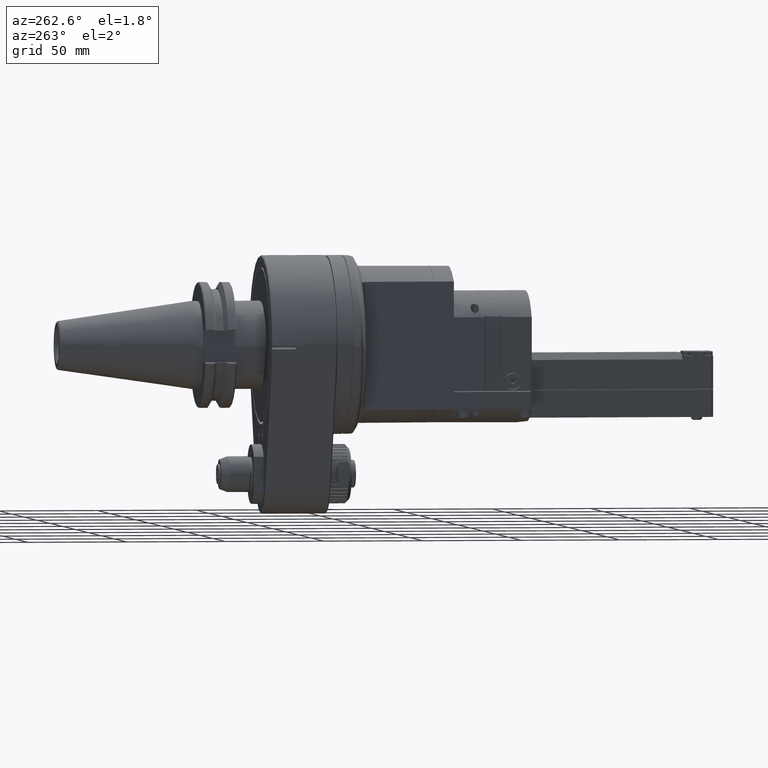
[diagram: clean part render]
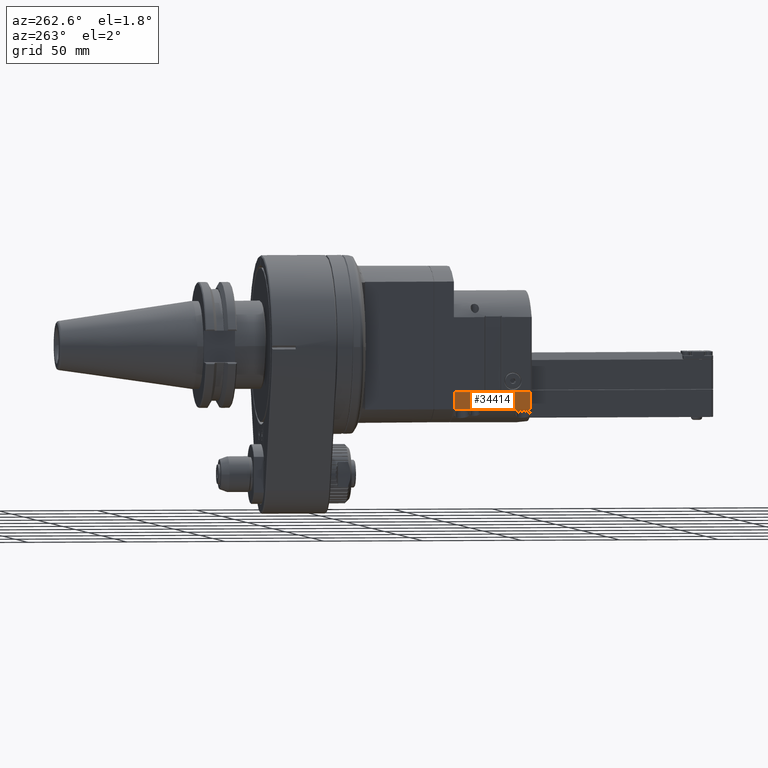
[diagram: same view with one face highlighted and labeled with its STEP entity id]
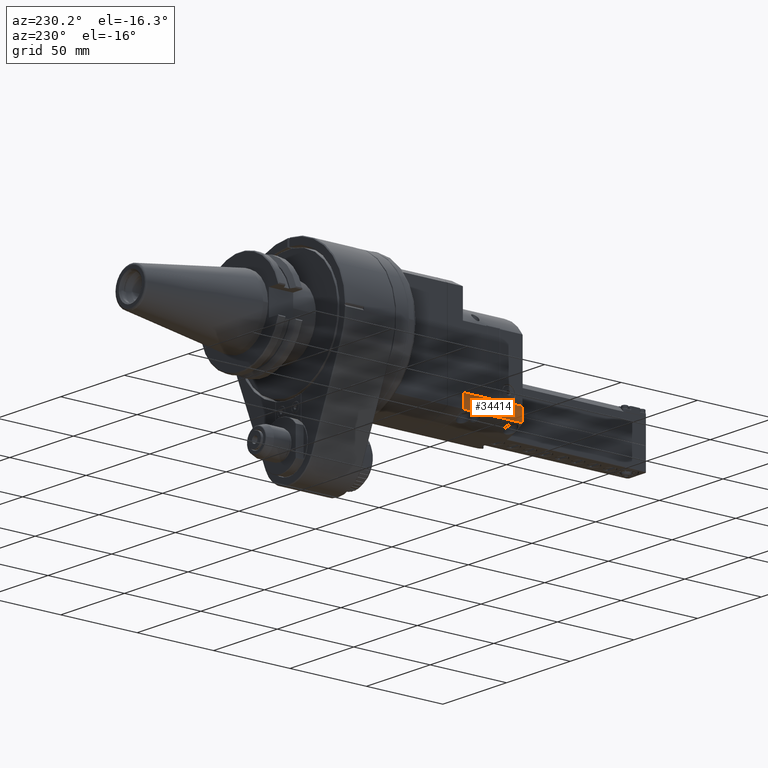
[diagram: same view with one face highlighted and labeled with its STEP entity id]
A machine part, auxiliary view. The second image highlights one B-rep face of the part: STEP entity #34414.
A second angle (auxiliary view) of the same face is appended — the face is thin or edge-on in the first view.
In plain terms, the highlighted planar face has unit normal (-1, -0, 0).
Its self-contained STEP definition (entity closure, byte-faithful):
#1884=LINE('',#51374,#4583);
#1907=LINE('',#52848,#4606);
#1908=LINE('',#55148,#4607);
#1912=LINE('',#55156,#4611);
#4583=VECTOR('',#40690,38.8);
#4606=VECTOR('',#40745,38.8);
#4607=VECTOR('',#40752,8.613081446663);
#4611=VECTOR('',#40764,8.613081446663);
#7900=FACE_OUTER_BOUND('',#9996,.T.);
#9996=EDGE_LOOP('',(#23179,#23180,#23181,#23182));
#14114=VERTEX_POINT('',#51371);
#14115=VERTEX_POINT('',#51373);
#14130=VERTEX_POINT('',#51430);
#14145=VERTEX_POINT('',#52846);
#17626=EDGE_CURVE('',#14114,#14115,#1884,.T.);
#17666=EDGE_CURVE('',#14145,#14130,#1907,.T.);
#17677=EDGE_CURVE('',#14114,#14130,#1908,.T.);
#17681=EDGE_CURVE('',#14115,#14145,#1912,.T.);
#23179=ORIENTED_EDGE('',*,*,#17677,.T.);
#23180=ORIENTED_EDGE('',*,*,#17666,.F.);
#23181=ORIENTED_EDGE('',*,*,#17681,.F.);
#23182=ORIENTED_EDGE('',*,*,#17626,.F.);
#33476=PLANE('',#36671);
#34414=ADVANCED_FACE('',(#7900),#33476,.T.);
#36671=AXIS2_PLACEMENT_3D('',#55155,#40762,#40763);
#40690=DIRECTION('',(0.,1.,0.));
#40745=DIRECTION('',(0.,-1.,0.));
#40752=DIRECTION('',(-1.278684344562E-14,2.144889868297E-14,-1.));
#40762=DIRECTION('center_axis',(1.,0.,0.));
#40763=DIRECTION('ref_axis',(0.,1.,0.));
#40764=DIRECTION('',(0.,0.,-1.));
#51371=CARTESIAN_POINT('',(23.,87.2,-23.5));
#51373=CARTESIAN_POINT('',(23.,126.,-23.5));
#51374=CARTESIAN_POINT('',(23.,87.2,-23.5));
#51430=CARTESIAN_POINT('',(23.,87.2,-32.11308144666));
#52846=CARTESIAN_POINT('',(23.,126.,-32.11308144666));
#52848=CARTESIAN_POINT('',(23.,126.,-32.11308144666));
#55148=CARTESIAN_POINT('',(23.,87.2,-23.5));
#55155=CARTESIAN_POINT('Origin',(23.,87.,-39.5));
#55156=CARTESIAN_POINT('',(23.,126.,-23.5));